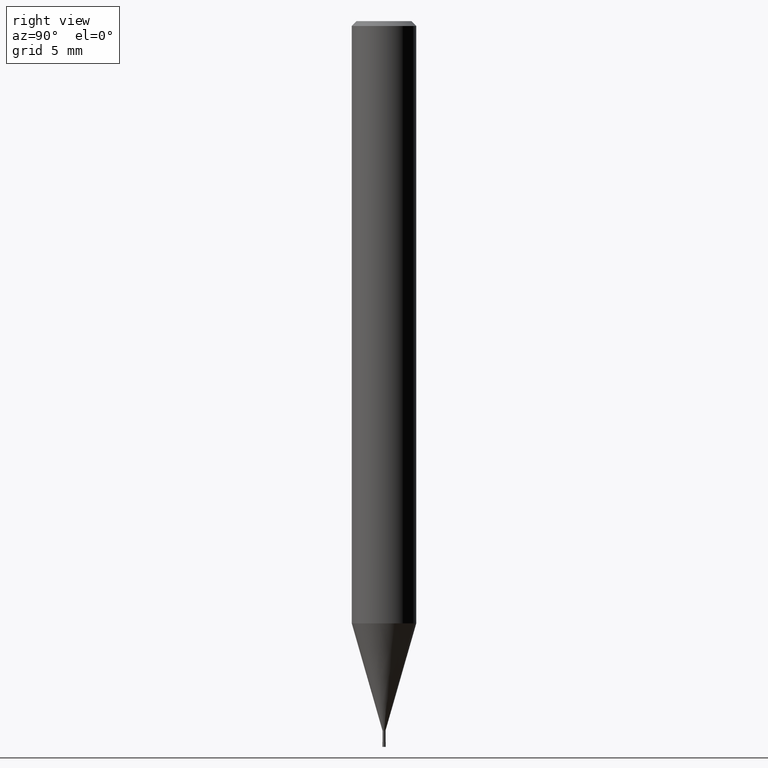
[diagram: clean part render]
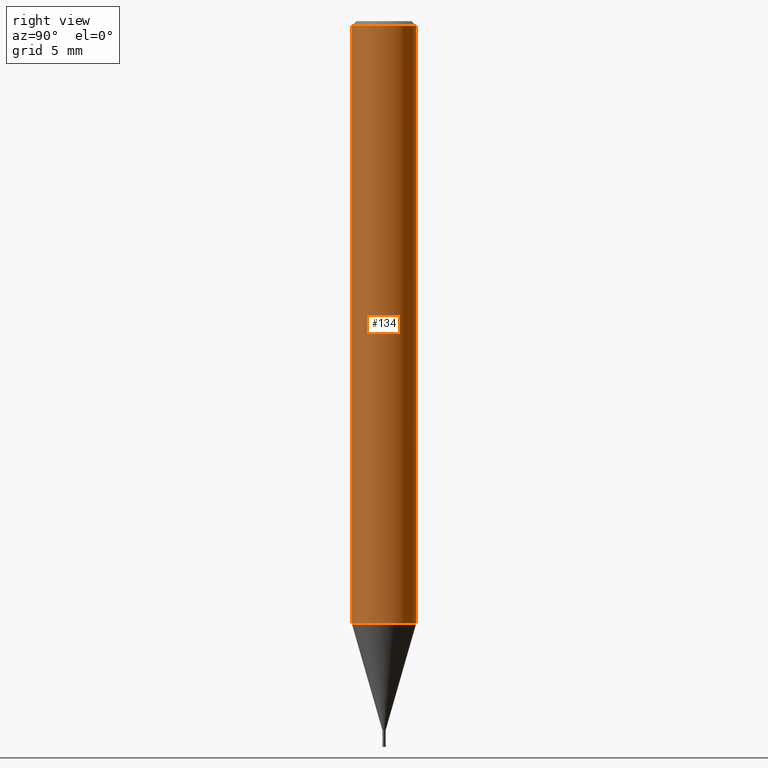
[diagram: same view with one face highlighted and labeled with its STEP entity id]
A machine part, right view. The second image highlights one B-rep face of the part: STEP entity #134.
In plain terms, the highlighted cylindrical surface (edge-blend (fillet) strip) has radius 2 mm, axis along (-0, -0, 1).
Its self-contained STEP definition (entity closure, byte-faithful):
#96=EDGE_CURVE('',#110,#170,#234,.T.);
#98=VERTEX_POINT('',#236);
#110=VERTEX_POINT('',#249);
#116=EDGE_CURVE('',#170,#132,#256,.T.);
#132=VERTEX_POINT('',#275);
#134=ADVANCED_FACE('',(#277),#278,.T.);
#162=EDGE_CURVE('',#110,#98,#308,.T.);
#164=EDGE_CURVE('',#132,#98,#310,.T.);
#170=VERTEX_POINT('',#317);
#234=LINE('',#382,#383);
#236=CARTESIAN_POINT('',(2.44921270764475E-016,-2.0,-0.299999999999997));
#249=CARTESIAN_POINT('',(0.0,2.0,-0.299999999999997));
#256=CIRCLE('',#408,2.0);
#275=CARTESIAN_POINT('',(2.44921270764475E-016,-2.0,-37.339));
#277=FACE_OUTER_BOUND('',#432,.T.);
#278=CYLINDRICAL_SURFACE('',#433,2.0);
#308=CIRCLE('',#471,2.0);
#310=LINE('',#474,#475);
#317=CARTESIAN_POINT('',(0.0,2.0,-37.339));
#382=CARTESIAN_POINT('',(-2.44921270764475E-016,2.0,-18.8195));
#383=VECTOR('',#551,1.0);
#408=AXIS2_PLACEMENT_3D('',#573,#574,#575);
#432=EDGE_LOOP('',(#602,#603,#604,#605));
#433=AXIS2_PLACEMENT_3D('',#606,#607,#608);
#471=AXIS2_PLACEMENT_3D('',#644,#645,#646);
#474=CARTESIAN_POINT('',(2.44921270764475E-016,-2.0,-18.8195));
#475=VECTOR('',#647,1.0);
#551=DIRECTION('',(0.0,0.0,-1.0));
#573=CARTESIAN_POINT('',(0.0,0.0,-37.339));
#574=DIRECTION('',(0.0,0.0,-1.0));
#575=DIRECTION('',(0.0,1.0,0.0));
#602=ORIENTED_EDGE('',*,*,#96,.F.);
#603=ORIENTED_EDGE('',*,*,#162,.T.);
#604=ORIENTED_EDGE('',*,*,#164,.F.);
#605=ORIENTED_EDGE('',*,*,#116,.F.);
#606=CARTESIAN_POINT('',(0.0,0.0,-18.8195));
#607=DIRECTION('',(-0.0,-0.0,1.0));
#608=DIRECTION('',(0.0,1.0,0.0));
#644=CARTESIAN_POINT('',(0.0,0.0,-0.299999999999997));
#645=DIRECTION('',(0.0,0.0,-1.0));
#646=DIRECTION('',(0.0,1.0,0.0));
#647=DIRECTION('',(-0.0,-0.0,1.0));